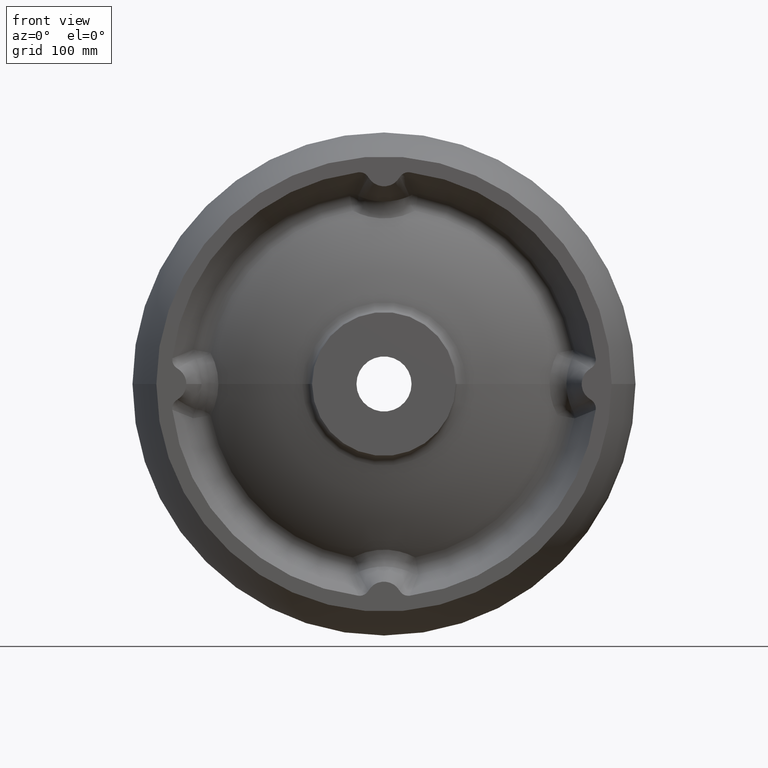
[diagram: clean part render]
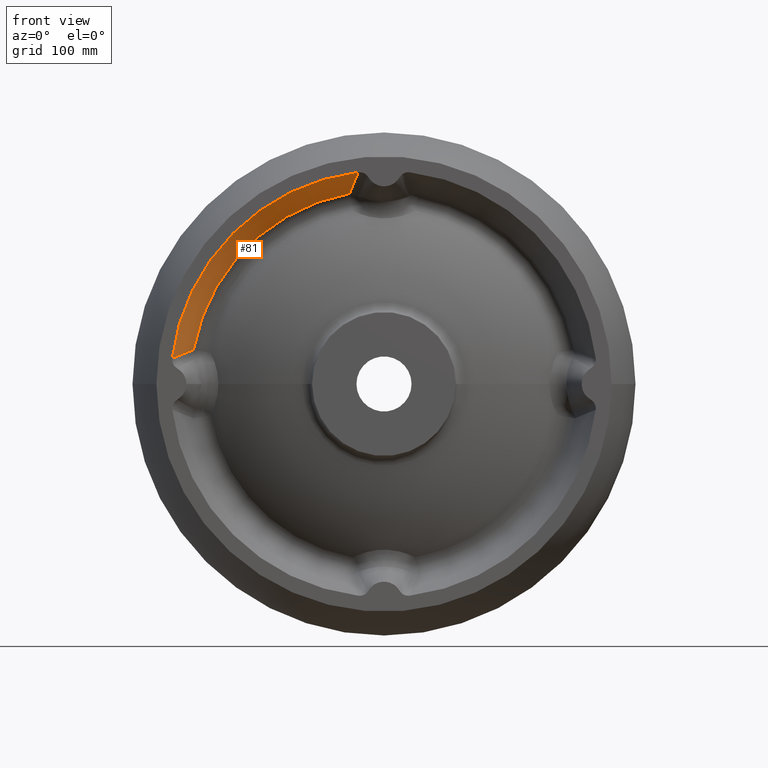
[diagram: same view with one face highlighted and labeled with its STEP entity id]
A machine part, front view. The second image highlights one B-rep face of the part: STEP entity #81.
In plain terms, the highlighted conical surface has half-angle 30 deg.
Its self-contained STEP definition (entity closure, byte-faithful):
#81 = ADVANCED_FACE ( 'NONE', ( #694 ), #1442, .F. ) ;
#111 = DIRECTION ( 'NONE',  ( 1.000000000000000000, 1.246832498358330100E-016, 0.0000000000000000000 ) ) ;
#232 = EDGE_CURVE ( 'NONE', #861, #2095, #2267, .T. ) ;
#238 = CARTESIAN_POINT ( 'NONE',  ( -2.767172476553205900E-030, 2.219361847077827600E-014, 0.0000000000000000000 ) ) ;
#277 = ORIENTED_EDGE ( 'NONE', *, *, #1899, .T. ) ;
#297 = AXIS2_PLACEMENT_3D ( 'NONE', #1765, #482, #111 ) ;
#308 = CARTESIAN_POINT ( 'NONE',  ( -159.0286620201842100, 28.42218461940032600, 28.65931379613287400 ) ) ;
#403 = VERTEX_POINT ( 'NONE', #1888 ) ;
#432 = DIRECTION ( 'NONE',  ( -1.000000000000000000, -1.246832498358330100E-016, 0.0000000000000000000 ) ) ;
#454 = ORIENTED_EDGE ( 'NONE', *, *, #232, .T. ) ;
#482 = DIRECTION ( 'NONE',  ( 1.246832498358330100E-016, -1.000000000000000000, 0.0000000000000000000 ) ) ;
#581 = CIRCLE ( 'NONE', #1117, 178.0000000000000000 ) ;
#681 = CARTESIAN_POINT ( 'NONE',  ( -28.65931379613292100, 28.42218461940034400, 159.0286620201841900 ) ) ;
#694 = FACE_OUTER_BOUND ( 'NONE', #2148, .T. ) ;
#861 = VERTEX_POINT ( 'NONE', #308 ) ;
#890 = B_SPLINE_CURVE_WITH_KNOTS ( 'NONE', 3,
 ( #681, #1927, #1008, #1188, #1562, #1405, #1434, #1596 ),
 .UNSPECIFIED., .F., .F.,
 ( 4, 2, 2, 4 ),
 ( 1.430489624538199200E-017, 0.01711223144364192700, 0.02566834716546286700, 0.03422446288728380600 ),
 .UNSPECIFIED. ) ;
#941 = AXIS2_PLACEMENT_3D ( 'NONE', #2196, #1317, #1139 ) ;
#963 = CARTESIAN_POINT ( 'NONE',  ( -173.7848634752950000, 4.686656889367011300, 22.96954575659352600 ) ) ;
#1008 = CARTESIAN_POINT ( 'NONE',  ( -26.68644674927078600, 18.87355825015474400, 164.9664699156942900 ) ) ;
#1117 = AXIS2_PLACEMENT_3D ( 'NONE', #238, #1540, #432 ) ;
#1139 = DIRECTION ( 'NONE',  ( -1.000000000000000000, -1.288237174725316500E-016, 0.0000000000000000000 ) ) ;
#1188 = CARTESIAN_POINT ( 'NONE',  ( -24.92367951654268800, 11.76288286149695800, 169.3867513109305200 ) ) ;
#1317 = DIRECTION ( 'NONE',  ( -1.246832498358330100E-016, 1.000000000000000000, -0.0000000000000000000 ) ) ;
#1405 = CARTESIAN_POINT ( 'NONE',  ( -22.96954575659356100, 4.686656889367013100, 173.7848634752949700 ) ) ;
#1434 = CARTESIAN_POINT ( 'NONE',  ( -22.26073404109473900, 2.338270349220110700, 175.2442736087041600 ) ) ;
#1442 = CONICAL_SURFACE ( 'NONE', #297, 178.0000000000000000, 0.5235987755982951500 ) ;
#1453 = CARTESIAN_POINT ( 'NONE',  ( -175.2442736087041100, 2.338270349220111100, 22.26073404109444500 ) ) ;
#1540 = DIRECTION ( 'NONE',  ( -1.246832498358330100E-016, 1.000000000000000000, -0.0000000000000000000 ) ) ;
#1562 = CARTESIAN_POINT ( 'NONE',  ( -24.30111663218699600, 9.398945296449532800, 170.8561134018490000 ) ) ;
#1596 = CARTESIAN_POINT ( 'NONE',  ( -21.49595527540273200, 1.951343290871534200E-014, 176.6972662686038400 ) ) ;
#1605 = CARTESIAN_POINT ( 'NONE',  ( -28.65931379613292100, 28.42218461940034400, 159.0286620201841900 ) ) ;
#1607 = CARTESIAN_POINT ( 'NONE',  ( -169.3867513109305800, 11.76288286149696000, 24.92367951654267300 ) ) ;
#1638 = CARTESIAN_POINT ( 'NONE',  ( -159.0286620201842100, 28.42218461940032600, 28.65931379613287400 ) ) ;
#1662 = ORIENTED_EDGE ( 'NONE', *, *, #1940, .T. ) ;
#1707 = B_SPLINE_CURVE_WITH_KNOTS ( 'NONE', 3,
 ( #2035, #1453, #963, #2313, #1607, #2146, #2159, #1638 ),
 .UNSPECIFIED., .F., .F.,
 ( 4, 2, 2, 4 ),
 ( 1.181742429579229200E-017, 0.008556115721820946300, 0.01711223144364187900, 0.03422446288728379900 ),
 .UNSPECIFIED. ) ;
#1711 = VERTEX_POINT ( 'NONE', #2017 ) ;
#1765 = CARTESIAN_POINT ( 'NONE',  ( -2.767172476553205900E-030, 2.219361847077827600E-014, 0.0000000000000000000 ) ) ;
#1888 = CARTESIAN_POINT ( 'NONE',  ( -21.49595527540273200, 1.951343290871534200E-014, 176.6972662686038400 ) ) ;
#1899 = EDGE_CURVE ( 'NONE', #2095, #403, #890, .T. ) ;
#1927 = CARTESIAN_POINT ( 'NONE',  ( -27.72300224751004500, 23.63892806522817100, 162.0035003118971400 ) ) ;
#1940 = EDGE_CURVE ( 'NONE', #1711, #861, #1707, .T. ) ;
#1956 = ORIENTED_EDGE ( 'NONE', *, *, #2261, .F. ) ;
#2017 = CARTESIAN_POINT ( 'NONE',  ( -176.6972662686038400, 1.624290753012274000E-016, 21.49595527540267500 ) ) ;
#2035 = CARTESIAN_POINT ( 'NONE',  ( -176.6972662686038400, 1.624290753012274000E-016, 21.49595527540267500 ) ) ;
#2095 = VERTEX_POINT ( 'NONE', #1605 ) ;
#2146 = CARTESIAN_POINT ( 'NONE',  ( -164.9664699156943200, 18.87355825015473300, 26.68644674927075400 ) ) ;
#2148 = EDGE_LOOP ( 'NONE', ( #1956, #1662, #454, #277 ) ) ;
#2159 = CARTESIAN_POINT ( 'NONE',  ( -162.0035003118971100, 23.63892806522813200, 27.72300224750998500 ) ) ;
#2196 = CARTESIAN_POINT ( 'NONE',  ( -3.543770345780864200E-015, 28.42218461940034800, 0.0000000000000000000 ) ) ;
#2261 = EDGE_CURVE ( 'NONE', #1711, #403, #581, .T. ) ;
#2267 = CIRCLE ( 'NONE', #941, 161.5904440590321100 ) ;
#2313 = CARTESIAN_POINT ( 'NONE',  ( -170.8561134018489700, 9.398945296449529300, 24.30111663218695700 ) ) ;